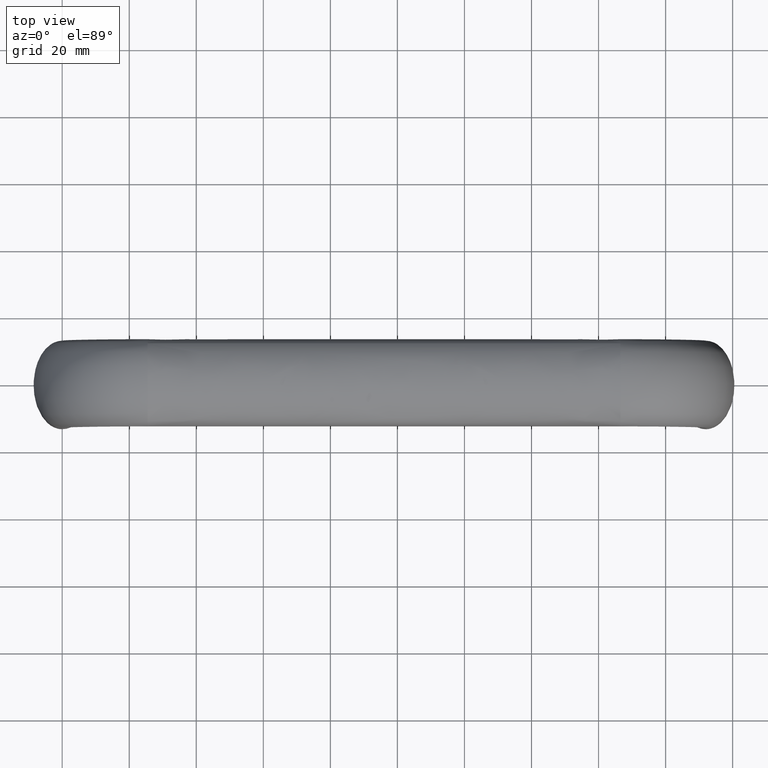
[diagram: clean part render]
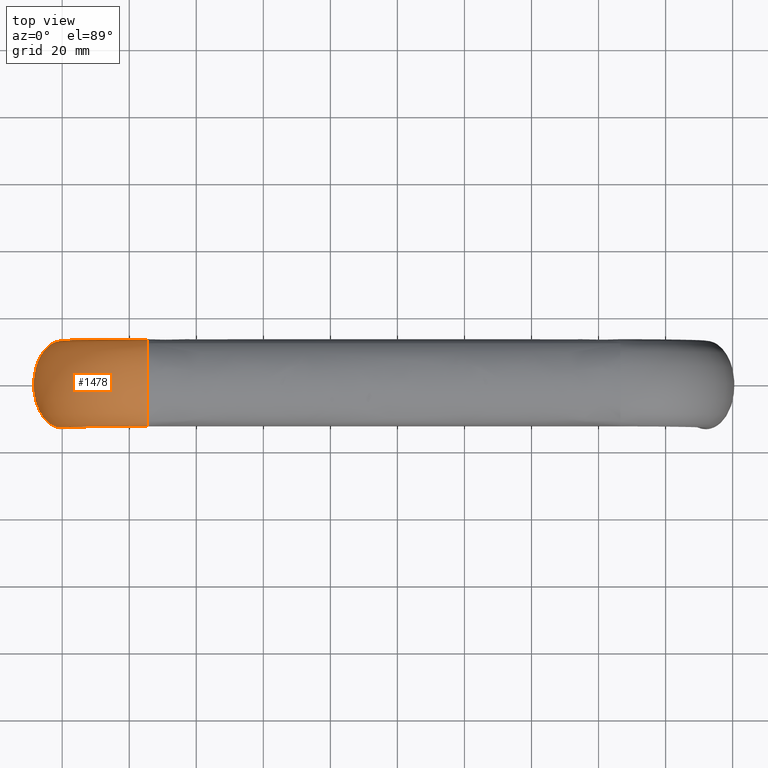
[diagram: same view with one face highlighted and labeled with its STEP entity id]
A machine part, top view. The second image highlights one B-rep face of the part: STEP entity #1478.
In plain terms, the highlighted face is a freeform B-spline surface patch.
Its self-contained STEP definition (entity closure, byte-faithful):
#1071=CARTESIAN_POINT('',(25.500000000000000,11.762630262037840,52.119082295067372));
#1072=VERTEX_POINT('',#1071);
#1080=CARTESIAN_POINT('',(25.500000000000011,-13.0,48.500007999999987));
#1081=VERTEX_POINT('',#1080);
#1082=CARTESIAN_POINT('',(25.500000000000000,11.762630262037840,52.119082295067372));
#1083=CARTESIAN_POINT('',(25.500000000000000,11.124518000658959,53.004813718209860));
#1084=CARTESIAN_POINT('',(25.500000000000000,10.251275255620961,53.818066382265307));
#1085=CARTESIAN_POINT('',(25.500000000000000,6.785826563922671,56.083936680683401));
#1086=CARTESIAN_POINT('',(25.500000000000000,3.403392041388941,57.000008000000001));
#1087=CARTESIAN_POINT('',(25.500000000000000,-3.403392041388945,57.000008000000001));
#1088=CARTESIAN_POINT('',(25.500000000000000,-6.785826563922671,56.083936680683401));
#1089=CARTESIAN_POINT('',(25.500000000000000,-10.395668951176340,53.723655119786798));
#1090=CARTESIAN_POINT('',(25.500000000000000,-11.359223048605340,52.780769333152712));
#1091=CARTESIAN_POINT('',(25.500000000000000,-12.661644796688099,50.724865017053901));
#1092=CARTESIAN_POINT('',(25.500000000000000,-13.0,49.612655398146401));
#1093=CARTESIAN_POINT('',(25.500000000000000,-13.0,48.500007999999987));
#1094=B_SPLINE_CURVE_WITH_KNOTS('',3,(#1082,#1083,#1084,#1085,#1086,#1087,#1088,#1089,#1090,#1091,#1092,#1093),.UNSPECIFIED.,.F.,.U.,(4,2,2,2,2,4),(0.570000000003388,0.625000000000000,0.750000000000000,0.875000000000000,0.937500000000000,1.0),.UNSPECIFIED.);
#1095=EDGE_CURVE('',#1072,#1081,#1094,.T.);
#1184=CARTESIAN_POINT('',(25.500000000000000,11.762639561952421,44.880946613731197));
#1185=VERTEX_POINT('',#1184);
#1201=CARTESIAN_POINT('',(25.500000000000000,13.0,48.500007999999987));
#1202=VERTEX_POINT('',#1201);
#1203=CARTESIAN_POINT('',(25.500000000000000,11.762639561952421,44.880946613731197));
#1204=CARTESIAN_POINT('',(25.500000000000000,11.849651458850300,45.001723964544240));
#1205=CARTESIAN_POINT('',(25.500000000000000,11.932291401725539,45.123848960485148));
#1206=CARTESIAN_POINT('',(25.500000000000000,12.661644796688099,46.275150982946101));
#1207=CARTESIAN_POINT('',(25.500000000000000,13.0,47.387360601853601));
#1208=CARTESIAN_POINT('',(25.500000000000000,13.0,48.500007999999987));
#1209=B_SPLINE_CURVE_WITH_KNOTS('',3,(#1203,#1204,#1205,#1206,#1207,#1208),.UNSPECIFIED.,.F.,.U.,(4,2,4),(0.430000267191079,0.437500000000000,0.500000000000000),.UNSPECIFIED.);
#1210=EDGE_CURVE('',#1185,#1202,#1209,.T.);
#1212=CARTESIAN_POINT('',(25.500000000000000,13.0,48.500007999999987));
#1213=CARTESIAN_POINT('',(25.500000000000000,13.0,49.612655398146401));
#1214=CARTESIAN_POINT('',(25.500000000000000,12.661644796688099,50.724865017053901));
#1215=CARTESIAN_POINT('',(25.500000000000000,11.932288617726471,51.876171434124942));
#1216=CARTESIAN_POINT('',(25.500000000000000,11.849645570385370,51.998300737397102));
#1217=CARTESIAN_POINT('',(25.500000000000000,11.762630262037840,52.119082295067372));
#1218=B_SPLINE_CURVE_WITH_KNOTS('',3,(#1212,#1213,#1214,#1215,#1216,#1217),.UNSPECIFIED.,.F.,.U.,(4,2,4),(0.500000000000000,0.562500000000000,0.570000000003387),.UNSPECIFIED.);
#1219=EDGE_CURVE('',#1202,#1072,#1218,.T.);
#1225=CARTESIAN_POINT('',(3.619074294985481,11.762630262096790,23.000008000000001));
#1226=CARTESIAN_POINT('',(3.498292737286736,11.849645570460011,23.000008000000001));
#1227=CARTESIAN_POINT('',(3.376163434069190,11.932288617761760,23.000008000000001));
#1228=CARTESIAN_POINT('',(2.224857017053885,12.661644796688099,23.000008000000001));
#1229=CARTESIAN_POINT('',(1.112647398146382,13.0,23.000008000000001));
#1230=CARTESIAN_POINT('',(-1.112647398146386,13.0,23.000008000000001));
#1231=CARTESIAN_POINT('',(-2.224857017053880,12.661644796688099,23.000008000000001));
#1232=CARTESIAN_POINT('',(-4.280761333152644,11.359223048605360,23.000008000000001));
#1233=CARTESIAN_POINT('',(-5.223647119786780,10.395668951176340,23.000008000000001));
#1234=CARTESIAN_POINT('',(-7.583928680683410,6.785826563922671,23.000008000000001));
#1235=CARTESIAN_POINT('',(-8.500000000000000,3.403392041388941,23.000008000000001));
#1236=CARTESIAN_POINT('',(-8.500000000000000,-3.403392041388945,23.000008000000001));
#1237=CARTESIAN_POINT('',(-7.583928680683410,-6.785826563922671,23.000008000000001));
#1238=CARTESIAN_POINT('',(-5.223647119786780,-10.395668951176340,23.000008000000001));
#1239=CARTESIAN_POINT('',(-4.280761333152644,-11.359223048605340,23.000008000000001));
#1240=CARTESIAN_POINT('',(-2.224857017053880,-12.661644796688099,23.000008000000001));
#1241=CARTESIAN_POINT('',(-1.112647398146384,-13.0,23.000008000000001));
#1242=CARTESIAN_POINT('',(9.757820E-016,-13.0,23.000008000000001));
#1243=CARTESIAN_POINT('',(3.619100251034044,11.762630262096790,25.864682765257960));
#1244=CARTESIAN_POINT('',(3.498318913622375,11.849645570460011,25.880495619042868));
#1245=CARTESIAN_POINT('',(3.376189833805555,11.932288617761760,25.896484921146190));
#1246=CARTESIAN_POINT('',(2.224885528919035,12.661644796688099,26.047215217884549));
#1247=CARTESIAN_POINT('',(1.112678002155452,13.0,26.192826918960549));
#1248=CARTESIAN_POINT('',(-1.112612510434716,13.0,26.484164950088250));
#1249=CARTESIAN_POINT('',(-2.224819943553890,12.661644796688099,26.629776651074650));
#1250=CARTESIAN_POINT('',(-4.280720148346635,11.359223048605360,26.898937894929649));
#1251=CARTESIAN_POINT('',(-5.223604020907680,10.395668951176340,27.022381534343399));
#1252=CARTESIAN_POINT('',(-7.583880718923040,6.785826563922671,27.331392180186651));
#1253=CARTESIAN_POINT('',(-8.499950125297030,3.403392041388941,27.451325240138850));
#1254=CARTESIAN_POINT('',(-8.499950125297030,-3.403392041388945,27.451325240138850));
#1255=CARTESIAN_POINT('',(-7.583880718923040,-6.785826563922671,27.331392180186651));
#1256=CARTESIAN_POINT('',(-5.223604020907669,-10.395668951176340,27.022381534343399));
#1257=CARTESIAN_POINT('',(-4.280720148346635,-11.359223048605340,26.898937894929649));
#1258=CARTESIAN_POINT('',(-2.224819943553890,-12.661644796688099,26.629776651074650));
#1259=CARTESIAN_POINT('',(-1.112612510434714,-13.0,26.484164950088200));
#1260=CARTESIAN_POINT('',(0.000032745860370,-13.0,26.338495934524371));
#1261=CARTESIAN_POINT('',(4.188576266435777,11.762630262096790,28.727294115719449));
#1262=CARTESIAN_POINT('',(4.070938329630901,11.849645570460011,28.758908433494341));
#1263=CARTESIAN_POINT('',(3.951987725518275,11.932288617761760,28.790875520813881));
#1264=CARTESIAN_POINT('',(2.830646735151875,12.661644796688099,29.092227545222951));
#1265=CARTESIAN_POINT('',(1.747384957810580,13.0,29.383346065249199));
#1266=CARTESIAN_POINT('',(-0.419991366904757,13.0,29.965812280892351));
#1267=CARTESIAN_POINT('',(-1.503253144246410,12.661644796688099,30.256930800918600));
#1268=CARTESIAN_POINT('',(-3.505647769900695,11.359223048605360,30.795059415929000));
#1269=CARTESIAN_POINT('',(-4.423992761434075,10.395668951176340,31.041857780293551));
#1270=CARTESIAN_POINT('',(-6.722842506318040,6.785826563922671,31.659656496623651));
#1271=CARTESIAN_POINT('',(-7.615070939400220,3.403392041388941,31.899436230761051));
#1272=CARTESIAN_POINT('',(-7.615070939400220,-3.403392041388945,31.899436230761051));
#1273=CARTESIAN_POINT('',(-6.722842506318040,-6.785826563922671,31.659656496623651));
#1274=CARTESIAN_POINT('',(-4.423992761434070,-10.395668951176340,31.041857780293551));
#1275=CARTESIAN_POINT('',(-3.505647769900695,-11.359223048605340,30.795059415929000));
#1276=CARTESIAN_POINT('',(-1.503253144246410,-12.661644796688099,30.256930800918600));
#1277=CARTESIAN_POINT('',(-0.419991366904755,-13.0,29.965812280892351));
#1278=CARTESIAN_POINT('',(0.663696795452912,-13.0,29.674579173070772));
#1279=CARTESIAN_POINT('',(6.380744911038185,11.762630262096790,34.019657388521502));
#1280=CARTESIAN_POINT('',(6.275207629717658,11.849645570460011,34.080485272879727));
#1281=CARTESIAN_POINT('',(6.168492706705174,11.932288617761760,34.141991907455477));
#1282=CARTESIAN_POINT('',(5.162496828412880,12.661644796688099,34.721811665781154));
#1283=CARTESIAN_POINT('',(4.190663200212534,13.0,35.281941534700849));
#1284=CARTESIAN_POINT('',(2.246230892730345,13.0,36.402642220396700));
#1285=CARTESIAN_POINT('',(1.274397264530372,12.661644796688099,36.962772089316402));
#1286=CARTESIAN_POINT('',(-0.522023946705873,11.359223048605360,37.998164514903749));
#1287=CARTESIAN_POINT('',(-1.345904714706656,10.395668951176340,38.473019688854002));
#1288=CARTESIAN_POINT('',(-3.408286619975070,6.785826563922671,39.661702270667803));
#1289=CARTESIAN_POINT('',(-4.208737271367310,3.403392041388941,40.123053170065049));
#1290=CARTESIAN_POINT('',(-4.208737271367310,-3.403392041388945,40.123053170065049));
#1291=CARTESIAN_POINT('',(-3.408286619975070,-6.785826563922671,39.661702270667803));
#1292=CARTESIAN_POINT('',(-1.345904714706652,-10.395668951176340,38.473019688854002));
#1293=CARTESIAN_POINT('',(-0.522023946705873,-11.359223048605340,37.998164514903749));
#1294=CARTESIAN_POINT('',(1.274397264530370,-12.661644796688099,36.962772089316402));
#1295=CARTESIAN_POINT('',(2.246230892730345,-13.0,36.402642220396700));
#1296=CARTESIAN_POINT('',(3.218447046471442,-13.0,35.842291877548767));
#1297=CARTESIAN_POINT('',(8.002549312785751,11.762630262096790,36.446859202094863));
#1298=CARTESIAN_POINT('',(7.905964306362707,11.849645570460011,36.521085112654383));
#1299=CARTESIAN_POINT('',(7.808301552541198,11.932288617761760,36.596139275806948));
#1300=CARTESIAN_POINT('',(6.887639989625160,12.661644796688099,37.303670862289252));
#1301=CARTESIAN_POINT('',(5.998242839657980,13.0,37.987175639568349));
#1302=CARTESIAN_POINT('',(4.218748384646530,13.0,39.354723265753897));
#1303=CARTESIAN_POINT('',(3.329351234679360,12.661644796688099,40.038228043056201));
#1304=CARTESIAN_POINT('',(1.685312729476490,11.359223048605360,41.301677304620100));
#1305=CARTESIAN_POINT('',(0.931318233185558,10.395668951176340,41.881124675548747));
#1306=CARTESIAN_POINT('',(-0.956120661151774,6.785826563922671,43.331627975659302));
#1307=CARTESIAN_POINT('',(-1.688672517127905,3.403392041388941,43.894596603555897));
#1308=CARTESIAN_POINT('',(-1.688672517127905,-3.403392041388945,43.894596603555897));
#1309=CARTESIAN_POINT('',(-0.956120661151773,-6.785826563922671,43.331627975647713));
#1310=CARTESIAN_POINT('',(0.931318233185560,-10.395668951176340,41.881124675548747));
#1311=CARTESIAN_POINT('',(1.685312729476490,-11.359223048605340,41.301677304620100));
#1312=CARTESIAN_POINT('',(3.329351234677910,-12.661644796688099,40.038228043056201));
#1313=CARTESIAN_POINT('',(4.218748384646535,-13.0,39.354723265753897));
#1314=CARTESIAN_POINT('',(5.108495612152263,-13.0,38.670949452666932));
#1315=CARTESIAN_POINT('',(12.053148797904630,11.762630262096790,40.497458687214767));
#1316=CARTESIAN_POINT('',(11.978922887345560,11.849645570460011,40.594043693637367));
#1317=CARTESIAN_POINT('',(11.903868724193639,11.932288617761760,40.691706447458238));
#1318=CARTESIAN_POINT('',(11.196337137719460,12.661644796688099,41.612368010366147));
#1319=CARTESIAN_POINT('',(10.512832360425840,13.0,42.501765160347801));
#1320=CARTESIAN_POINT('',(9.145284734241789,13.0,44.281259615357847));
#1321=CARTESIAN_POINT('',(8.461779956948169,12.661644796688099,45.170656765316302));
#1322=CARTESIAN_POINT('',(7.198330695382790,11.359223048605360,46.814695270520602));
#1323=CARTESIAN_POINT('',(6.618883324446901,10.395668951176340,47.568689766818800));
#1324=CARTESIAN_POINT('',(5.168380024345080,6.785826563922671,49.456128661147403));
#1325=CARTESIAN_POINT('',(4.605411396442680,3.403392041388941,50.188680517129399));
#1326=CARTESIAN_POINT('',(4.605411396442680,-3.403392041388945,50.188680517129399));
#1327=CARTESIAN_POINT('',(5.168380024345080,-6.785826563922671,49.456128661159013));
#1328=CARTESIAN_POINT('',(6.618883324446911,-10.395668951176340,47.568689766818800));
#1329=CARTESIAN_POINT('',(7.198330695382790,-11.359223048605340,46.814695270520602));
#1330=CARTESIAN_POINT('',(8.461779956949620,-12.661644796688099,45.170656765316302));
#1331=CARTESIAN_POINT('',(9.145284734241789,-13.0,44.281259615357847));
#1332=CARTESIAN_POINT('',(9.829058547333816,-13.0,43.391512387847037));
#1333=CARTESIAN_POINT('',(14.480350611476540,11.762630262096790,42.119263088956387));
#1334=CARTESIAN_POINT('',(14.419522727118050,11.849645570460011,42.224800370277137));
#1335=CARTESIAN_POINT('',(14.358016092541980,11.932288617761760,42.331515293289982));
#1336=CARTESIAN_POINT('',(13.778196334213060,12.661644796688099,43.337511171587153));
#1337=CARTESIAN_POINT('',(13.218066465299140,13.0,44.309344799780249));
#1338=CARTESIAN_POINT('',(12.097365779603320,13.0,46.253777107265002));
#1339=CARTESIAN_POINT('',(11.537235910686499,12.661644796688099,47.225610735469587));
#1340=CARTESIAN_POINT('',(10.501843485102039,11.359223048605360,49.022031946703002));
#1341=CARTESIAN_POINT('',(10.026988311140199,10.395668951176340,49.845912714696503));
#1342=CARTESIAN_POINT('',(8.838305729337970,6.785826563922671,51.908294619975102));
#1343=CARTESIAN_POINT('',(8.376954829934979,3.403392041388941,52.708745271367299));
#1344=CARTESIAN_POINT('',(8.376954829934979,-3.403392041388945,52.708745271367299));
#1345=CARTESIAN_POINT('',(8.838305729337970,-6.785826563922671,51.908294619975102));
#1346=CARTESIAN_POINT('',(10.026988311140199,-10.395668951176340,49.845912714708113));
#1347=CARTESIAN_POINT('',(10.501843485102039,-11.359223048605340,49.022031946703002));
#1348=CARTESIAN_POINT('',(11.537235910689400,-12.661644796688099,47.225610735469587));
#1349=CARTESIAN_POINT('',(12.097365779603320,-13.0,46.253777107265002));
#1350=CARTESIAN_POINT('',(12.657716122451230,-13.0,45.281560953522600));
#1351=CARTESIAN_POINT('',(19.772713884282521,11.762630262096790,44.311431733569677));
#1352=CARTESIAN_POINT('',(19.741099566507909,11.849645570460011,44.429069670374332));
#1353=CARTESIAN_POINT('',(19.709132479188678,11.932288617761760,44.548020274486603));
#1354=CARTESIAN_POINT('',(19.407780454782849,12.661644796688099,45.669361264848099));
#1355=CARTESIAN_POINT('',(19.116661934750798,13.0,46.752623042196703));
#1356=CARTESIAN_POINT('',(18.534195719107650,13.0,48.919999366909501));
#1357=CARTESIAN_POINT('',(18.243077199078499,12.661644796688099,50.003261144246402));
#1358=CARTESIAN_POINT('',(17.704948584065200,11.359223048605360,52.005655769903598));
#1359=CARTESIAN_POINT('',(17.458150219712248,10.395668951176340,52.924000761444198));
#1360=CARTESIAN_POINT('',(16.840351503370549,6.785826563922671,55.222850506317997));
#1361=CARTESIAN_POINT('',(16.600571769239000,3.403392041388941,56.115078939400192));
#1362=CARTESIAN_POINT('',(16.600571769239000,-3.403392041388945,56.115078939400192));
#1363=CARTESIAN_POINT('',(16.840351503370549,-6.785826563922671,55.222850506317997));
#1364=CARTESIAN_POINT('',(17.458150219712248,-10.395668951176340,52.924000761432602));
#1365=CARTESIAN_POINT('',(17.704948584065200,-11.359223048605340,52.005655769903598));
#1366=CARTESIAN_POINT('',(18.243077199075600,-12.661644796688099,50.003261144246402));
#1367=CARTESIAN_POINT('',(18.534195719107650,-13.0,48.919999366909501));
#1368=CARTESIAN_POINT('',(18.825428826929230,-13.0,47.836311204553112));
#1369=CARTESIAN_POINT('',(22.635325234740570,11.762630262096790,44.880907748963722));
#1370=CARTESIAN_POINT('',(22.619512380955470,11.849645570460011,45.001689086375350));
#1371=CARTESIAN_POINT('',(22.603523078851929,11.932288617761760,45.123818166192251));
#1372=CARTESIAN_POINT('',(22.452792782111150,12.661644796688099,46.275122471081012));
#1373=CARTESIAN_POINT('',(22.307181081039449,13.0,47.387329997853101));
#1374=CARTESIAN_POINT('',(22.015843049911801,13.0,49.612620510437701));
#1375=CARTESIAN_POINT('',(21.870231348927550,12.661644796688099,50.724827943553898));
#1376=CARTESIAN_POINT('',(21.601070105074701,11.359223048605360,52.780728148338902));
#1377=CARTESIAN_POINT('',(21.477626465652200,10.395668951176340,53.723612020913997));
#1378=CARTESIAN_POINT('',(21.168615819817699,6.785826563922671,56.083888718918203));
#1379=CARTESIAN_POINT('',(21.048682759861151,3.403392041388941,56.999958125300402));
#1380=CARTESIAN_POINT('',(21.048682759861151,-3.403392041388945,56.999958125300402));
#1381=CARTESIAN_POINT('',(21.168615819817699,-6.785826563922671,56.083888718918203));
#1382=CARTESIAN_POINT('',(21.477626465652250,-10.395668951176340,53.723612020901399));
#1383=CARTESIAN_POINT('',(21.601070105074701,-11.359223048605340,52.780728148338902));
#1384=CARTESIAN_POINT('',(21.870231348929750,-12.661644796688099,50.724827943553898));
#1385=CARTESIAN_POINT('',(22.015843049911801,-13.0,49.612620510437701));
#1386=CARTESIAN_POINT('',(22.161512065475630,-13.0,48.499975254139699));
#1387=CARTESIAN_POINT('',(25.500000000000000,11.762630262096790,44.880933705014499));
#1388=CARTESIAN_POINT('',(25.500000000000000,11.849645570460011,45.001715262713248));
#1389=CARTESIAN_POINT('',(25.500000000000000,11.932288617761760,45.123844565930803));
#1390=CARTESIAN_POINT('',(25.500000000000000,12.661644796688099,46.275150982946101));
#1391=CARTESIAN_POINT('',(25.500000000000000,13.0,47.387360601853601));
#1392=CARTESIAN_POINT('',(25.500000000000000,13.0,49.612655398146401));
#1393=CARTESIAN_POINT('',(25.500000000000000,12.661644796688099,50.724865017053901));
#1394=CARTESIAN_POINT('',(25.500000000000000,11.359223048605360,52.780769333152712));
#1395=CARTESIAN_POINT('',(25.500000000000000,10.395668951176340,53.723655119786798));
#1396=CARTESIAN_POINT('',(25.500000000000000,6.785826563922671,56.083936680683401));
#1397=CARTESIAN_POINT('',(25.500000000000000,3.403392041388941,57.000008000000001));
#1398=CARTESIAN_POINT('',(25.500000000000000,-3.403392041388945,57.000008000000001));
#1399=CARTESIAN_POINT('',(25.500000000000000,-6.785826563922671,56.083936680683401));
#1400=CARTESIAN_POINT('',(25.500000000000000,-10.395668951176340,53.723655119786798));
#1401=CARTESIAN_POINT('',(25.500000000000000,-11.359223048605340,52.780769333152712));
#1402=CARTESIAN_POINT('',(25.500000000000000,-12.661644796688099,50.724865017053901));
#1403=CARTESIAN_POINT('',(25.500000000000000,-13.0,49.612655398146401));
#1404=CARTESIAN_POINT('',(25.500000000000000,-13.0,48.500007999999987));
#1405=B_SPLINE_SURFACE_WITH_KNOTS('',3,3,((#1225,#1243,#1261,#1279,#1297,#1315,#1333,#1351,#1369,#1387),(#1226,#1244,#1262,#1280,#1298,#1316,#1334,#1352,#1370,#1388),(#1227,#1245,#1263,#1281,#1299,#1317,#1335,#1353,#1371,#1389),(#1228,#1246,#1264,#1282,#1300,#1318,#1336,#1354,#1372,#1390),(#1229,#1247,#1265,#1283,#1301,#1319,#1337,#1355,#1373,#1391),(#1230,#1248,#1266,#1284,#1302,#1320,#1338,#1356,#1374,#1392),(#1231,#1249,#1267,#1285,#1303,#1321,#1339,#1357,#1375,#1393),(#1232,#1250,#1268,#1286,#1304,#1322,#1340,#1358,#1376,#1394),(#1233,#1251,#1269,#1287,#1305,#1323,#1341,#1359,#1377,#1395),(#1234,#1252,#1270,#1288,#1306,#1324,#1342,#1360,#1378,#1396),(#1235,#1253,#1271,#1289,#1307,#1325,#1343,#1361,#1379,#1397),(#1236,#1254,#1272,#1290,#1308,#1326,#1344,#1362,#1380,#1398),(#1237,#1255,#1273,#1291,#1309,#1327,#1345,#1363,#1381,#1399),(#1238,#1256,#1274,#1292,#1310,#1328,#1346,#1364,#1382,#1400),(#1239,#1257,#1275,#1293,#1311,#1329,#1347,#1365,#1383,#1401),(#1240,#1258,#1276,#1294,#1312,#1330,#1348,#1366,#1384,#1402),(#1241,#1259,#1277,#1295,#1313,#1331,#1349,#1367,#1385,#1403),(#1242,#1260,#1278,#1296,#1314,#1332,#1350,#1368,#1386,#1404)),.UNSPECIFIED.,.F.,.F.,.U.,(4,2,2,2,2,2,2,2,4),(4,2,2,2,4),(0.0,0.600209731613888,5.601957495062949,10.603705258512010,15.605453021961070,25.608948548859189,35.612444075757310,40.614191839206377,45.615939602655438),(0.0,13.237780774919820,26.475561549839622,39.713342324759587,52.951123099679371),.UNSPECIFIED.);
#1406=ORIENTED_EDGE('',*,*,#1210,.F.);
#1407=CARTESIAN_POINT('',(3.619061386268793,11.762639561952421,23.000008000000001));
#1408=VERTEX_POINT('',#1407);
#1409=CARTESIAN_POINT('',(3.619061386268793,11.762639561952421,23.000008000000001));
#1410=CARTESIAN_POINT('',(3.619088187336679,11.762639561952421,25.864683610277289));
#1411=CARTESIAN_POINT('',(4.188565215123447,11.762639561952421,28.727295973123809));
#1412=CARTESIAN_POINT('',(6.380736067486700,11.762639561952421,34.019661453686702));
#1413=CARTESIAN_POINT('',(8.002541663595849,11.762639561952421,36.446864461621651));
#1414=CARTESIAN_POINT('',(12.053143538377849,11.762639561952421,40.497466336404678));
#1415=CARTESIAN_POINT('',(14.480346546311340,11.762639561952421,42.119271932507878));
#1416=CARTESIAN_POINT('',(19.772712026878171,11.762639561952421,44.311442784882011));
#1417=CARTESIAN_POINT('',(22.635324389721251,11.762639561952421,44.880919812661091));
#1418=CARTESIAN_POINT('',(25.500000000000000,11.762639561952421,44.880946613731197));
#1419=B_SPLINE_CURVE_WITH_KNOTS('',3,(#1409,#1410,#1411,#1412,#1413,#1414,#1415,#1416,#1417,#1418),.UNSPECIFIED.,.F.,.U.,(4,2,2,2,4),(0.086106674656938,0.123596109777166,0.161085544897393,0.198574980017622,0.236064415137849),.UNSPECIFIED.);
#1420=EDGE_CURVE('',#1408,#1185,#1419,.T.);
#1421=ORIENTED_EDGE('',*,*,#1420,.F.);
#1422=CARTESIAN_POINT('',(-1.951564E-015,13.0,23.000008000000001));
#1423=VERTEX_POINT('',#1422);
#1424=CARTESIAN_POINT('',(3.619061386268793,11.762639561952421,23.000008000000001));
#1425=CARTESIAN_POINT('',(3.498284035455757,11.849651458850300,23.000008000000001));
#1426=CARTESIAN_POINT('',(3.376159039514845,11.932291401725539,23.000008000000001));
#1427=CARTESIAN_POINT('',(2.224857017053885,12.661644796688099,23.000008000000001));
#1428=CARTESIAN_POINT('',(1.112647398146382,13.0,23.000008000000001));
#1429=CARTESIAN_POINT('',(-1.951564E-015,13.0,23.000008000000001));
#1430=B_SPLINE_CURVE_WITH_KNOTS('',3,(#1424,#1425,#1426,#1427,#1428,#1429),.UNSPECIFIED.,.F.,.U.,(4,2,4),(0.430000267191079,0.437500000000000,0.500000000000000),.UNSPECIFIED.);
#1431=EDGE_CURVE('',#1408,#1423,#1430,.T.);
#1432=ORIENTED_EDGE('',*,*,#1431,.T.);
#1433=CARTESIAN_POINT('',(-3.619074295067323,11.762630262037840,23.000008000000001));
#1434=VERTEX_POINT('',#1433);
#1435=CARTESIAN_POINT('',(-1.951564E-015,13.0,23.000008000000001));
#1436=CARTESIAN_POINT('',(-1.112647398146386,13.0,23.000008000000001));
#1437=CARTESIAN_POINT('',(-2.224857017053880,12.661644796688099,23.000008000000001));
#1438=CARTESIAN_POINT('',(-3.376163434124901,11.932288617726471,23.000008000000001));
#1439=CARTESIAN_POINT('',(-3.498292737397053,11.849645570385370,23.000008000000001));
#1440=CARTESIAN_POINT('',(-3.619074295067323,11.762630262037840,23.000008000000001));
#1441=B_SPLINE_CURVE_WITH_KNOTS('',3,(#1435,#1436,#1437,#1438,#1439,#1440),.UNSPECIFIED.,.F.,.U.,(4,2,4),(0.500000000000000,0.562500000000000,0.570000000003387),.UNSPECIFIED.);
#1442=EDGE_CURVE('',#1423,#1434,#1441,.T.);
#1443=ORIENTED_EDGE('',*,*,#1442,.T.);
#1444=CARTESIAN_POINT('',(8.991289E-016,-13.0,23.000008000000001));
#1445=VERTEX_POINT('',#1444);
#1446=CARTESIAN_POINT('',(-3.619074295067323,11.762630262037840,23.000008000000001));
#1447=CARTESIAN_POINT('',(-4.504805718209806,11.124518000658970,23.000008000000001));
#1448=CARTESIAN_POINT('',(-5.318058382265297,10.251275255620969,23.000008000000001));
#1449=CARTESIAN_POINT('',(-7.583928680683410,6.785826563922671,23.000008000000001));
#1450=CARTESIAN_POINT('',(-8.500000000000000,3.403392041388941,23.000008000000001));
#1451=CARTESIAN_POINT('',(-8.500000000000000,-3.403392041388945,23.000008000000001));
#1452=CARTESIAN_POINT('',(-7.583928680683410,-6.785826563922671,23.000008000000001));
#1453=CARTESIAN_POINT('',(-5.223647119786780,-10.395668951176340,23.000008000000001));
#1454=CARTESIAN_POINT('',(-4.280761333152644,-11.359223048605340,23.000008000000001));
#1455=CARTESIAN_POINT('',(-2.224857017053880,-12.661644796688099,23.000008000000001));
#1456=CARTESIAN_POINT('',(-1.112647398146384,-13.0,23.000008000000001));
#1457=CARTESIAN_POINT('',(9.757820E-016,-13.0,23.000008000000001));
#1458=B_SPLINE_CURVE_WITH_KNOTS('',3,(#1446,#1447,#1448,#1449,#1450,#1451,#1452,#1453,#1454,#1455,#1456,#1457),.UNSPECIFIED.,.F.,.U.,(4,2,2,2,2,4),(0.570000000003388,0.625000000000000,0.750000000000000,0.875000000000000,0.937500000000000,1.0),.UNSPECIFIED.);
#1459=EDGE_CURVE('',#1434,#1445,#1458,.T.);
#1460=ORIENTED_EDGE('',*,*,#1459,.T.);
#1461=CARTESIAN_POINT('',(8.881784E-016,-13.0,23.000008000000001));
#1462=CARTESIAN_POINT('',(0.000032745860370,-13.0,26.338495934524371));
#1463=CARTESIAN_POINT('',(0.663696795452912,-13.0,29.674579173070772));
#1464=CARTESIAN_POINT('',(3.218447046471442,-13.0,35.842291877548767));
#1465=CARTESIAN_POINT('',(5.108495612152263,-13.0,38.670949452666932));
#1466=CARTESIAN_POINT('',(9.829058547333816,-13.0,43.391512387847037));
#1467=CARTESIAN_POINT('',(12.657716122451230,-13.0,45.281560953522600));
#1468=CARTESIAN_POINT('',(18.825428826929230,-13.0,47.836311204553112));
#1469=CARTESIAN_POINT('',(22.161512065475630,-13.0,48.499975254139699));
#1470=CARTESIAN_POINT('',(25.500000000000000,-13.0,48.500007999999987));
#1471=B_SPLINE_CURVE_WITH_KNOTS('',3,(#1461,#1462,#1463,#1464,#1465,#1466,#1467,#1468,#1469,#1470),.UNSPECIFIED.,.F.,.U.,(4,2,2,2,4),(0.086106674656938,0.123596109777166,0.161085544897393,0.198574980017622,0.236064415137849),.UNSPECIFIED.);
#1472=EDGE_CURVE('',#1445,#1081,#1471,.T.);
#1473=ORIENTED_EDGE('',*,*,#1472,.T.);
#1474=ORIENTED_EDGE('',*,*,#1095,.F.);
#1475=ORIENTED_EDGE('',*,*,#1219,.F.);
#1476=EDGE_LOOP('',(#1406,#1421,#1432,#1443,#1460,#1473,#1474,#1475));
#1477=FACE_OUTER_BOUND('',#1476,.T.);
#1478=ADVANCED_FACE('',(#1477),#1405,.T.);